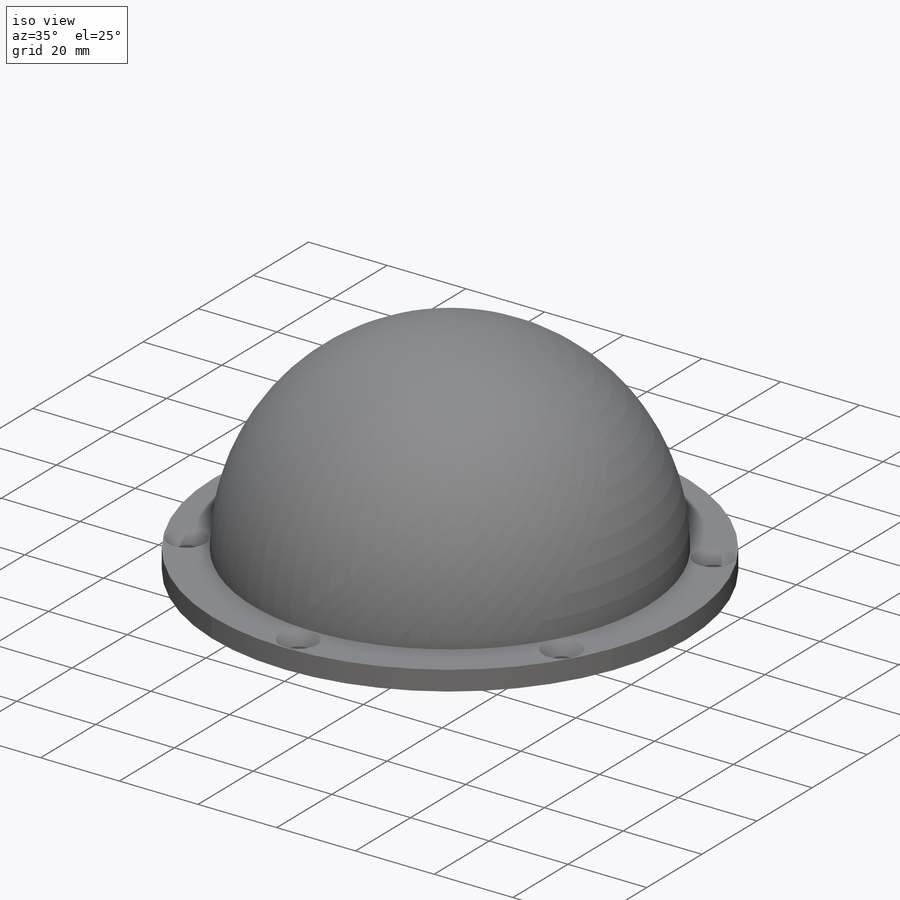
[diagram: iso view]
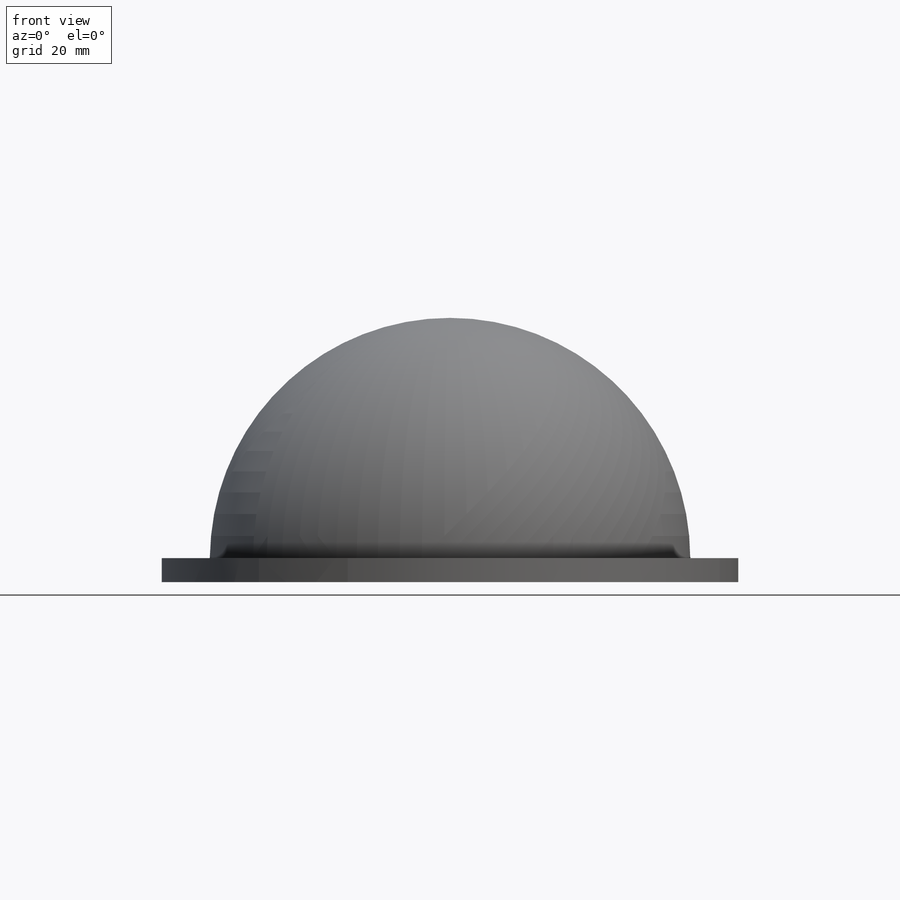
[diagram: front view]
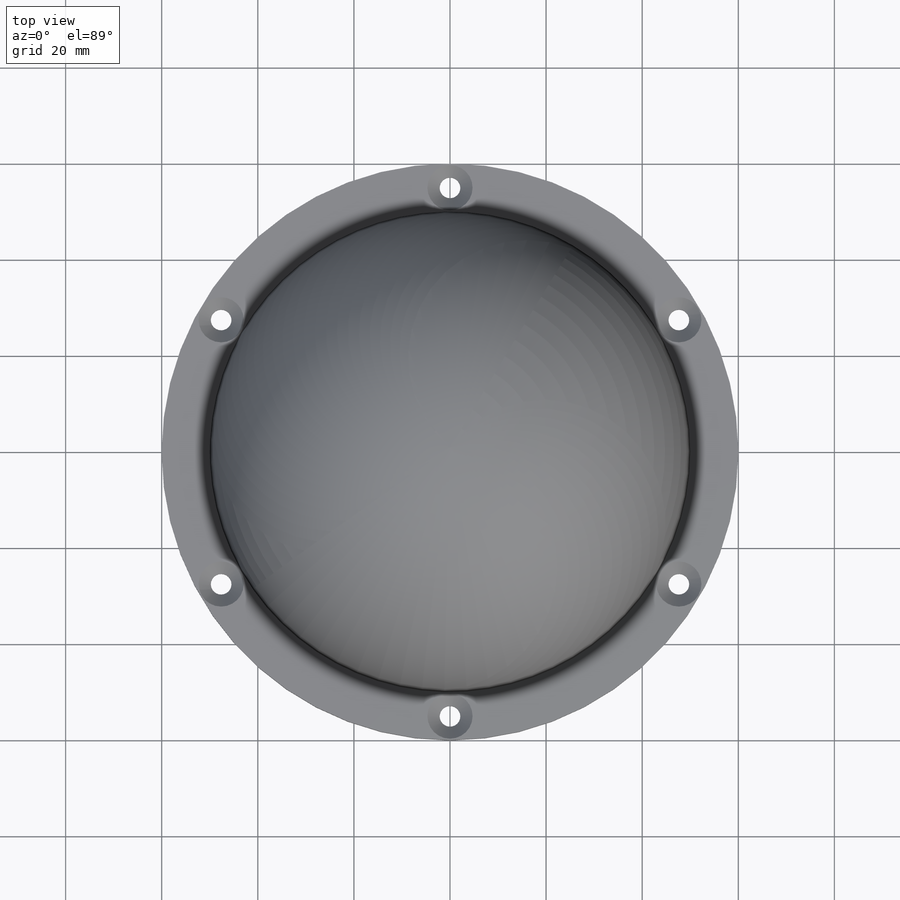
[diagram: top view]
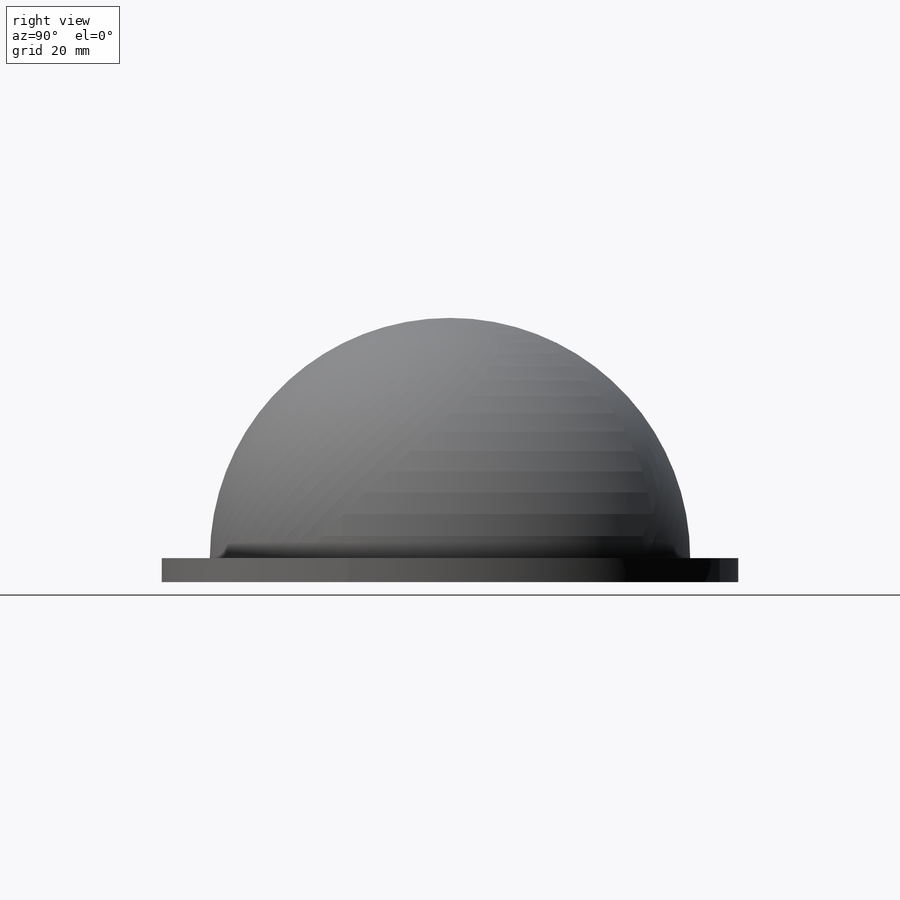
[diagram: right view]
SOLIDWORKS PART (.sldprt)
format: sldprt  version: not decoded by parser v0  size: 210,944 bytes
history: native  units: mm
features: plane x3, sketch x3, material x1, revolve x1, hole x1, pattern_circular x1 (+12 scaffold rows collapsed)
feature tree (22):
  scaffold x12  (default folders/planes/origin — collapsed)
  material  "Материал <не указан>"
  plane  "Спереди"
  plane  "Сверху"
  plane  "Справа"
  sketch  "Эскиз1"  dims[c1.D1=50.0mm c1.D2=120.0mm c1.D3=5.0mm c2.D2=60.0mm c2.D3=5.0mm c2.D4=10.0mm]
  revolve  "Повернуть1"  Angle=360deg
  hole  "CSK for M4 Countersunk Flat Head Screw1"  [1 undecoded]
  sketch  "Трехмерный эскиз1"  dims[D1=55.0mm]
  sketch  "Эскиз2"  dims[hole-wizard template sketch: 54 standard entries collapsed; hole parameters kept: c17.Диаметр сквозного отверстия=4.3mm c17.Глубина сквозного отверстия=5.0mm c17.Диаметр передней зенковки=9.4mm c17.D4=~3.666174mm c17.Угол передней зенковки=90.0deg]
  pattern_circular  "Круговой массив1"  Count=6 Angle=60deg
decode coverage: 5 of 6 modeling features carry decoded parameters
note: ~ marks probable driven/reference dimensions
note: 1 parameter value undecoded
note: suppression state not decoded; provenance and decode notes live in map.json
